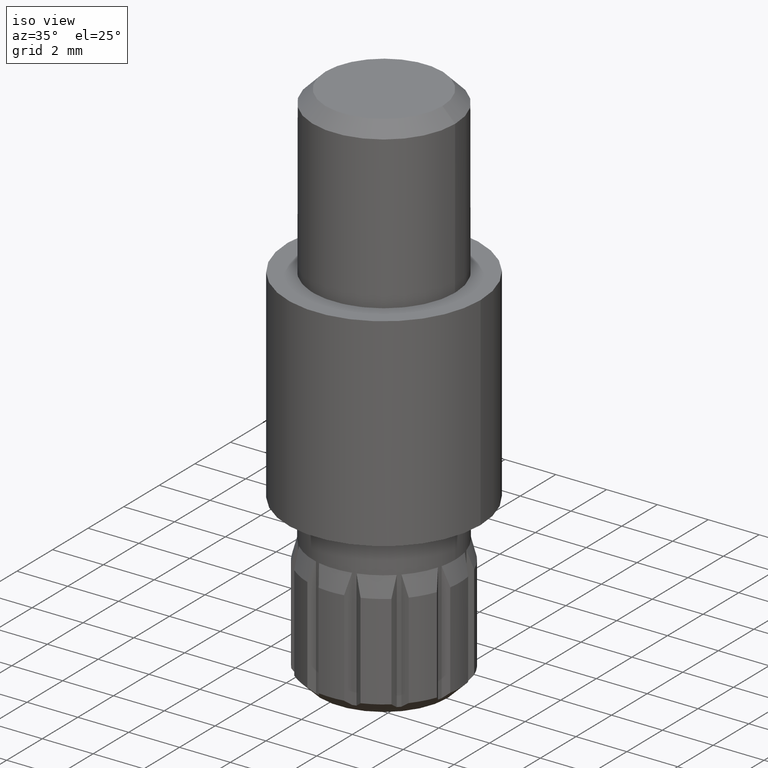
[diagram: clean part render]
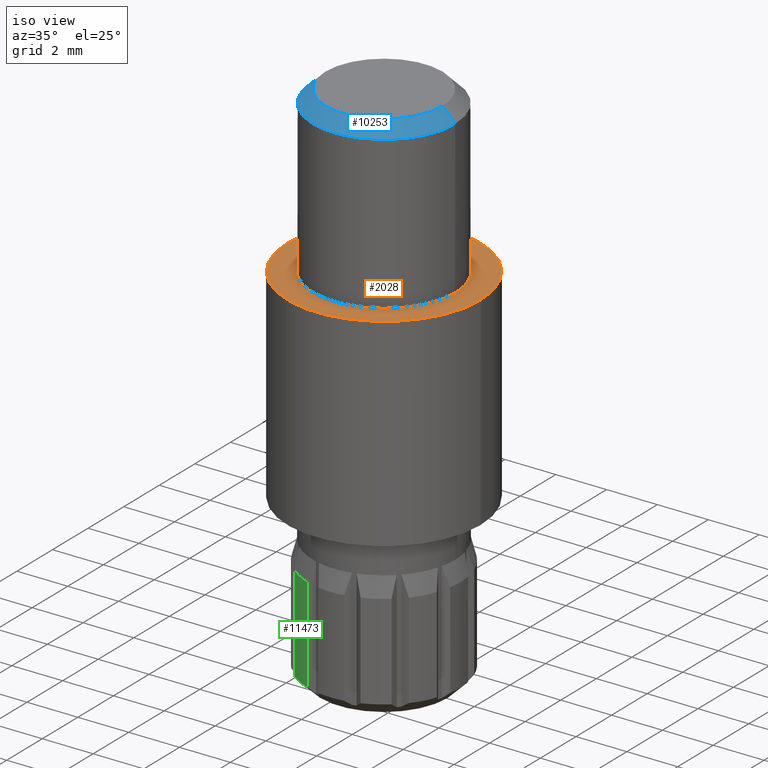
[diagram: same view with three faces highlighted in distinct colors, each labeled with its STEP entity id]
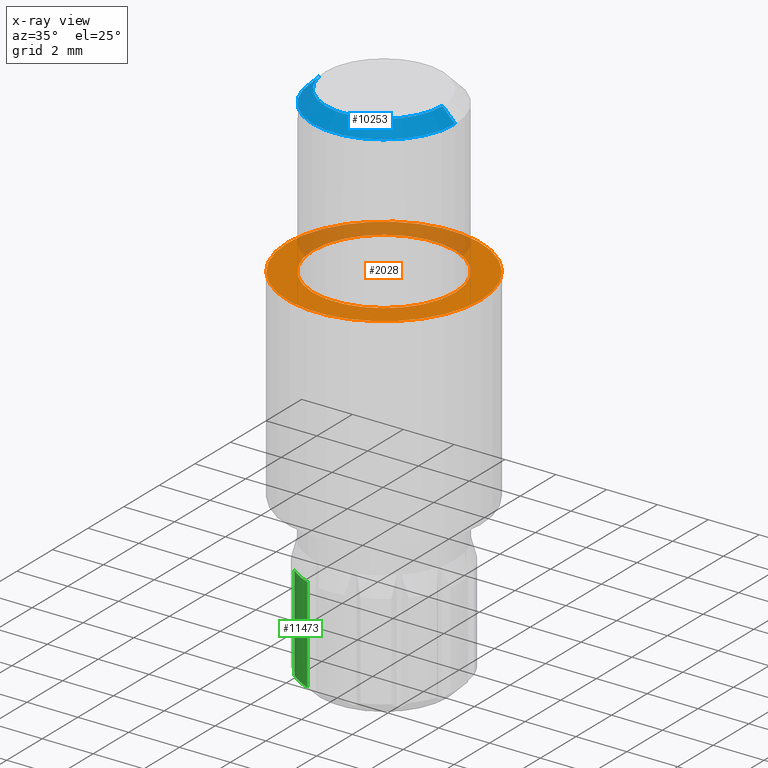
[diagram: x-ray of the same camera — body ghosted, the three highlighted faces saturated]
A machine part, iso view with three faces highlighted in distinct colors.
The next image is the same camera in x-ray (body ghosted, the three faces saturated) — at least one of them is partly hidden behind the body in this view.
Their STEP definitions:

[orange] entity #2028 — the highlighted planar face has unit normal (0, 0, 1).
#81 = ORIENTED_EDGE ( 'NONE', *, *, #4111, .T. ) ;
#590 = CARTESIAN_POINT ( 'NONE',  ( 0.0000000000000000000, 0.0000000000000000000, 8.000000000000000000 ) ) ;
#668 = CIRCLE ( 'NONE', #12442, 3.799999999999999800 ) ;
#1014 = DIRECTION ( 'NONE',  ( 0.0000000000000000000, 0.0000000000000000000, 1.000000000000000000 ) ) ;
#1532 = DIRECTION ( 'NONE',  ( 0.0000000000000000000, 0.0000000000000000000, 1.000000000000000000 ) ) ;
#1541 = ORIENTED_EDGE ( 'NONE', *, *, #9655, .F. ) ;
#1626 = DIRECTION ( 'NONE',  ( 1.000000000000000000, 0.0000000000000000000, 0.0000000000000000000 ) ) ;
#1840 = CIRCLE ( 'NONE', #7072, 2.799999999999999800 ) ;
#2028 = ADVANCED_FACE ( 'NONE', ( #13124, #5336 ), #3930, .T. ) ;
#2237 = CARTESIAN_POINT ( 'NONE',  ( 3.799999999999999800, 4.653657836759942700E-016, 8.000000000000000000 ) ) ;
#2485 = EDGE_LOOP ( 'NONE', ( #6192, #1541 ) ) ;
#2540 = VERTEX_POINT ( 'NONE', #6672 ) ;
#3626 = DIRECTION ( 'NONE',  ( 0.0000000000000000000, 0.0000000000000000000, 1.000000000000000000 ) ) ;
#3801 = AXIS2_PLACEMENT_3D ( 'NONE', #7106, #1014, #8119 ) ;
#3906 = VERTEX_POINT ( 'NONE', #2237 ) ;
#3930 = PLANE ( 'NONE',  #11222 ) ;
#4111 = EDGE_CURVE ( 'NONE', #7304, #3906, #668, .T. ) ;
#4971 = DIRECTION ( 'NONE',  ( 0.0000000000000000000, 0.0000000000000000000, 1.000000000000000000 ) ) ;
#4976 = CARTESIAN_POINT ( 'NONE',  ( -3.799999999999999800, 0.0000000000000000000, 8.000000000000000000 ) ) ;
#5336 = FACE_BOUND ( 'NONE', #2485, .T. ) ;
#5794 = VERTEX_POINT ( 'NONE', #9366 ) ;
#6192 = ORIENTED_EDGE ( 'NONE', *, *, #10511, .F. ) ;
#6557 = AXIS2_PLACEMENT_3D ( 'NONE', #590, #7711, #1626 ) ;
#6672 = CARTESIAN_POINT ( 'NONE',  ( 2.799999999999999800, 3.429011037612588800E-016, 8.000000000000000000 ) ) ;
#7072 = AXIS2_PLACEMENT_3D ( 'NONE', #9725, #3626, #10748 ) ;
#7106 = CARTESIAN_POINT ( 'NONE',  ( 0.0000000000000000000, 0.0000000000000000000, 8.000000000000000000 ) ) ;
#7304 = VERTEX_POINT ( 'NONE', #4976 ) ;
#7352 = EDGE_CURVE ( 'NONE', #3906, #7304, #11537, .T. ) ;
#7618 = CARTESIAN_POINT ( 'NONE',  ( 0.0000000000000000000, 0.0000000000000000000, 8.000000000000000000 ) ) ;
#7711 = DIRECTION ( 'NONE',  ( 0.0000000000000000000, 0.0000000000000000000, 1.000000000000000000 ) ) ;
#8119 = DIRECTION ( 'NONE',  ( 1.000000000000000000, 0.0000000000000000000, 0.0000000000000000000 ) ) ;
#8634 = DIRECTION ( 'NONE',  ( 1.000000000000000000, 0.0000000000000000000, 0.0000000000000000000 ) ) ;
#9366 = CARTESIAN_POINT ( 'NONE',  ( -2.799999999999999800, 0.0000000000000000000, 8.000000000000000000 ) ) ;
#9536 = EDGE_LOOP ( 'NONE', ( #81, #11658 ) ) ;
#9655 = EDGE_CURVE ( 'NONE', #2540, #5794, #1840, .T. ) ;
#9725 = CARTESIAN_POINT ( 'NONE',  ( 0.0000000000000000000, 0.0000000000000000000, 8.000000000000000000 ) ) ;
#10016 = CARTESIAN_POINT ( 'NONE',  ( 0.0000000000000000000, 0.0000000000000000000, 8.000000000000000000 ) ) ;
#10511 = EDGE_CURVE ( 'NONE', #5794, #2540, #12710, .T. ) ;
#10748 = DIRECTION ( 'NONE',  ( 1.000000000000000000, 0.0000000000000000000, 0.0000000000000000000 ) ) ;
#11222 = AXIS2_PLACEMENT_3D ( 'NONE', #10016, #4971, #12083 ) ;
#11537 = CIRCLE ( 'NONE', #3801, 3.799999999999999800 ) ;
#11658 = ORIENTED_EDGE ( 'NONE', *, *, #7352, .T. ) ;
#12083 = DIRECTION ( 'NONE',  ( 1.000000000000000000, 0.0000000000000000000, -0.0000000000000000000 ) ) ;
#12442 = AXIS2_PLACEMENT_3D ( 'NONE', #7618, #1532, #8634 ) ;
#12710 = CIRCLE ( 'NONE', #6557, 2.799999999999999800 ) ;
#13124 = FACE_OUTER_BOUND ( 'NONE', #9536, .T. ) ;

[blue] entity #10253 — the highlighted conical surface has half-angle 45 deg.
#114 = CARTESIAN_POINT ( 'NONE',  ( 0.0000000000000000000, 0.0000000000000000000, 20.50000000000000400 ) ) ;
#389 = VECTOR ( 'NONE', #6361, 1000.000000000000100 ) ;
#1108 = EDGE_LOOP ( 'NONE', ( #8762, #7389, #12027, #12840 ) ) ;
#1136 = DIRECTION ( 'NONE',  ( 1.000000000000000000, 0.0000000000000000000, 0.0000000000000000000 ) ) ;
#1186 = CIRCLE ( 'NONE', #11651, 2.300000000000006500 ) ;
#1211 = DIRECTION ( 'NONE',  ( 0.0000000000000000000, 0.0000000000000000000, -1.000000000000000000 ) ) ;
#1521 = AXIS2_PLACEMENT_3D ( 'NONE', #114, #7230, #1136 ) ;
#1689 = VERTEX_POINT ( 'NONE', #6025 ) ;
#2250 = CARTESIAN_POINT ( 'NONE',  ( 0.0000000000000000000, 0.0000000000000000000, 21.00000000000000000 ) ) ;
#2507 = EDGE_CURVE ( 'NONE', #4776, #7482, #1186, .T. ) ;
#2602 = CARTESIAN_POINT ( 'NONE',  ( 0.0000000000000000000, 0.0000000000000000000, 21.00000000000000000 ) ) ;
#3044 = CARTESIAN_POINT ( 'NONE',  ( -2.799999999999999800, 0.0000000000000000000, 20.50000000000000400 ) ) ;
#3483 = VECTOR ( 'NONE', #11630, 1000.000000000000100 ) ;
#3536 = VERTEX_POINT ( 'NONE', #3044 ) ;
#3594 = DIRECTION ( 'NONE',  ( 1.000000000000000000, 0.0000000000000000000, 0.0000000000000000000 ) ) ;
#3782 = CONICAL_SURFACE ( 'NONE', #11593, 2.300000000000006500, 0.7853981633974447300 ) ;
#4776 = VERTEX_POINT ( 'NONE', #12333 ) ;
#5300 = CARTESIAN_POINT ( 'NONE',  ( -2.300000000000006500, 0.0000000000000000000, 21.00000000000000000 ) ) ;
#6025 = CARTESIAN_POINT ( 'NONE',  ( 2.799999999999999800, 3.429011037612588300E-016, 20.50000000000000400 ) ) ;
#6361 = DIRECTION ( 'NONE',  ( -0.7071067811865451300, 0.0000000000000000000, -0.7071067811865500200 ) ) ;
#6430 = CARTESIAN_POINT ( 'NONE',  ( 2.300000000000006500, 3.122849337825754900E-016, 21.00000000000000000 ) ) ;
#6808 = FACE_OUTER_BOUND ( 'NONE', #1108, .T. ) ;
#6992 = CIRCLE ( 'NONE', #1521, 2.799999999999999800 ) ;
#7230 = DIRECTION ( 'NONE',  ( 0.0000000000000000000, 0.0000000000000000000, -1.000000000000000000 ) ) ;
#7289 = DIRECTION ( 'NONE',  ( -1.000000000000000000, 0.0000000000000000000, 0.0000000000000000000 ) ) ;
#7389 = ORIENTED_EDGE ( 'NONE', *, *, #2507, .F. ) ;
#7482 = VERTEX_POINT ( 'NONE', #6430 ) ;
#7723 = EDGE_CURVE ( 'NONE', #1689, #3536, #6992, .T. ) ;
#8762 = ORIENTED_EDGE ( 'NONE', *, *, #12335, .F. ) ;
#9053 = EDGE_CURVE ( 'NONE', #4776, #3536, #10879, .T. ) ;
#9695 = DIRECTION ( 'NONE',  ( 0.0000000000000000000, 0.0000000000000000000, 1.000000000000000000 ) ) ;
#10253 = ADVANCED_FACE ( 'NONE', ( #6808 ), #3782, .T. ) ;
#10879 = LINE ( 'NONE', #5300, #389 ) ;
#11593 = AXIS2_PLACEMENT_3D ( 'NONE', #2250, #1211, #7289 ) ;
#11630 = DIRECTION ( 'NONE',  ( 0.7071067811865451300, 8.659560562354904500E-017, -0.7071067811865500200 ) ) ;
#11633 = LINE ( 'NONE', #12650, #3483 ) ;
#11651 = AXIS2_PLACEMENT_3D ( 'NONE', #2602, #9695, #3594 ) ;
#12027 = ORIENTED_EDGE ( 'NONE', *, *, #9053, .T. ) ;
#12333 = CARTESIAN_POINT ( 'NONE',  ( -2.300000000000006500, 0.0000000000000000000, 21.00000000000000000 ) ) ;
#12335 = EDGE_CURVE ( 'NONE', #7482, #1689, #11633, .T. ) ;
#12650 = CARTESIAN_POINT ( 'NONE',  ( 2.300000000000006500, 2.816687638038920400E-016, 21.00000000000000000 ) ) ;
#12840 = ORIENTED_EDGE ( 'NONE', *, *, #7723, .F. ) ;

[green] entity #11473 — the highlighted cylindrical surface (partial cylindrical patch) has radius 3 mm, axis along (0, 0, -1).
#172 = DIRECTION ( 'NONE',  ( -1.000000000000000000, 0.0000000000000000000, 0.0000000000000000000 ) ) ;
#469 = ORIENTED_EDGE ( 'NONE', *, *, #4483, .F. ) ;
#1448 = FACE_OUTER_BOUND ( 'NONE', #2648, .T. ) ;
#1600 = VERTEX_POINT ( 'NONE', #8944 ) ;
#2259 = ORIENTED_EDGE ( 'NONE', *, *, #4802, .T. ) ;
#2375 = AXIS2_PLACEMENT_3D ( 'NONE', #12376, #6273, #172 ) ;
#2648 = EDGE_LOOP ( 'NONE', ( #2259, #5816, #5538, #469 ) ) ;
#3437 = EDGE_CURVE ( 'NONE', #5226, #6609, #12763, .T. ) ;
#3531 = CARTESIAN_POINT ( 'NONE',  ( -1.046007243882707700, -2.811737691489891900, 5.000000000000000000 ) ) ;
#3835 = CARTESIAN_POINT ( 'NONE',  ( -1.912032647667142500, -2.311737691489884400, 5.000000000000000000 ) ) ;
#4142 = CARTESIAN_POINT ( 'NONE',  ( 0.0000000000000000000, 0.0000000000000000000, 0.4999999999999998900 ) ) ;
#4204 = LINE ( 'NONE', #3531, #9899 ) ;
#4483 = EDGE_CURVE ( 'NONE', #4983, #1600, #4204, .T. ) ;
#4802 = EDGE_CURVE ( 'NONE', #4983, #5226, #6127, .T. ) ;
#4844 = DIRECTION ( 'NONE',  ( 0.0000000000000000000, 0.0000000000000000000, -1.000000000000000000 ) ) ;
#4983 = VERTEX_POINT ( 'NONE', #7955 ) ;
#5179 = DIRECTION ( 'NONE',  ( -1.000000000000000000, 0.0000000000000000000, 0.0000000000000000000 ) ) ;
#5203 = AXIS2_PLACEMENT_3D ( 'NONE', #12972, #4844, #6877 ) ;
#5226 = VERTEX_POINT ( 'NONE', #8164 ) ;
#5538 = ORIENTED_EDGE ( 'NONE', *, *, #5656, .F. ) ;
#5656 = EDGE_CURVE ( 'NONE', #1600, #6609, #8175, .T. ) ;
#5816 = ORIENTED_EDGE ( 'NONE', *, *, #3437, .T. ) ;
#5934 = DIRECTION ( 'NONE',  ( 0.0000000000000000000, 0.0000000000000000000, -1.000000000000000000 ) ) ;
#6127 = CIRCLE ( 'NONE', #2375, 3.000000000000000900 ) ;
#6273 = DIRECTION ( 'NONE',  ( -0.0000000000000000000, -0.0000000000000000000, -1.000000000000000000 ) ) ;
#6609 = VERTEX_POINT ( 'NONE', #12329 ) ;
#6877 = DIRECTION ( 'NONE',  ( -1.000000000000000000, 0.0000000000000000000, 0.0000000000000000000 ) ) ;
#7955 = CARTESIAN_POINT ( 'NONE',  ( -1.046007243882709000, -2.811737691489891500, 4.250000000000000000 ) ) ;
#8164 = CARTESIAN_POINT ( 'NONE',  ( -1.912032647667142800, -2.311737691489884400, 4.250000000000000000 ) ) ;
#8175 = CIRCLE ( 'NONE', #12367, 3.000000000000000000 ) ;
#8320 = VECTOR ( 'NONE', #5934, 1000.000000000000000 ) ;
#8944 = CARTESIAN_POINT ( 'NONE',  ( -1.046007243882707700, -2.811737691489891500, 0.4999999999999998900 ) ) ;
#9235 = CYLINDRICAL_SURFACE ( 'NONE', #5203, 3.000000000000000400 ) ;
#9899 = VECTOR ( 'NONE', #10661, 1000.000000000000000 ) ;
#10661 = DIRECTION ( 'NONE',  ( 0.0000000000000000000, 0.0000000000000000000, -1.000000000000000000 ) ) ;
#11263 = DIRECTION ( 'NONE',  ( -0.0000000000000000000, -0.0000000000000000000, -1.000000000000000000 ) ) ;
#11473 = ADVANCED_FACE ( 'NONE', ( #1448 ), #9235, .T. ) ;
#12329 = CARTESIAN_POINT ( 'NONE',  ( -1.912032647667142300, -2.311737691489884000, 0.4999999999999998900 ) ) ;
#12367 = AXIS2_PLACEMENT_3D ( 'NONE', #4142, #11263, #5179 ) ;
#12376 = CARTESIAN_POINT ( 'NONE',  ( 0.0000000000000000000, 0.0000000000000000000, 4.250000000000000000 ) ) ;
#12763 = LINE ( 'NONE', #3835, #8320 ) ;
#12972 = CARTESIAN_POINT ( 'NONE',  ( 0.0000000000000000000, 0.0000000000000000000, 5.000000000000000000 ) ) ;